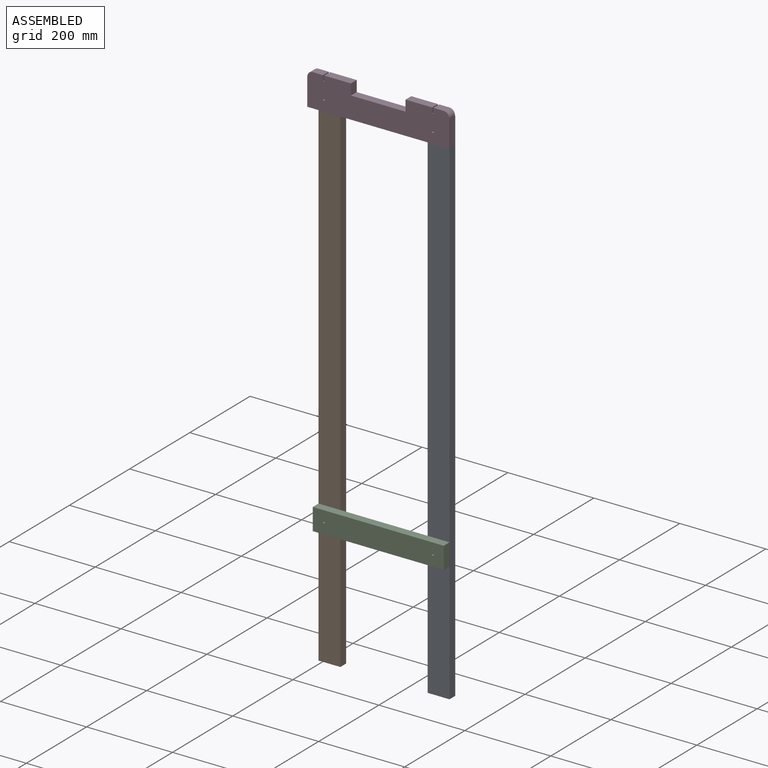
[diagram: assembled view]
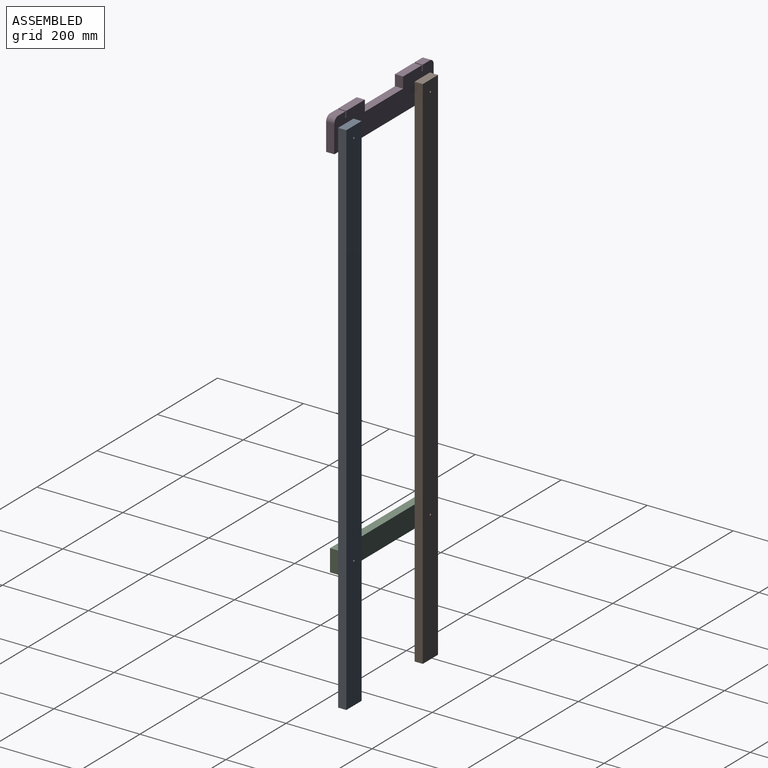
[diagram: assembled view, second angle]
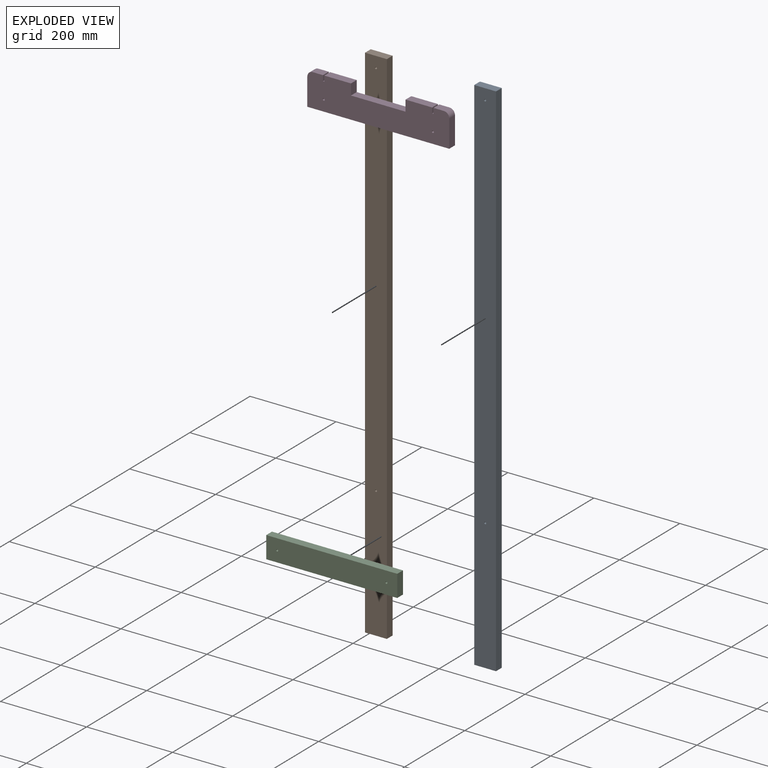
[diagram: exploded view]
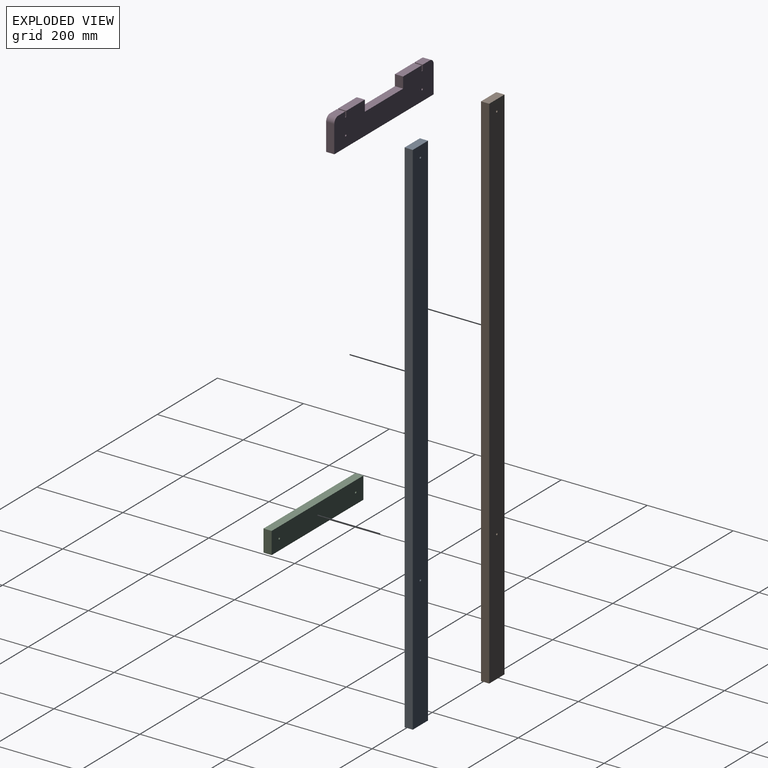
[diagram: exploded view, second angle]
ASSEMBLY  parts=4 mates=3
PART A: 8 faces, bbox 50.8x19.1x1219.2 mm
  f0: plane 1219.2x19.05mm, normal (-1,0,0), area 23225.8mm2, adj f1,f3,f4,f5
  f1: plane 50.8x19.05mm, normal (0,0,-1), area 967.7mm2, adj f0,f2,f4,f5
  f2: plane 1219.2x19.05mm, normal (1,0,0), area 23225.8mm2, adj f1,f3,f4,f5
  f3: plane 50.8x19.05mm, normal (0,0,1), area 967.7mm2, adj f0,f2,f4,f5
  f4: plane 1219.2x50.8mm, normal (0,-1,0), area 61899.7mm2, adj f0,f1,f2,f3,f6,f7
  f5: plane 1219.2x50.8mm, normal (0,1,0), area 61899.7mm2, adj f0,f1,f2,f3,f6,f7
  f6: cylinder r=2.38mm len=19.05mm, axis (0,-1,0), area 285mm2, adj f4,f5
  f7: cylinder r=2.38mm len=19.05mm, axis (0,-1,0), area 285mm2, adj f4,f5
PART B: same geometry as A
PART C: 8 faces, bbox 304.8x19.1x50.8 mm
  f0: plane 304.8x19.05mm, normal (0,0,1), area 5806.4mm2, adj f1,f3,f4,f5
  f1: plane 50.8x19.05mm, normal (-1,0,0), area 967.7mm2, adj f0,f2,f4,f5
  f2: plane 304.8x19.05mm, normal (0,0,-1), area 5806.4mm2, adj f1,f3,f4,f5
  f3: plane 50.8x19.05mm, normal (1,0,0), area 967.7mm2, adj f0,f2,f4,f5
  f4: plane 304.8x50.8mm, normal (0,-1,0), area 15448.2mm2, adj f0,f1,f2,f3,f6,f7
  f5: plane 304.8x50.8mm, normal (0,1,0), area 15448.2mm2, adj f0,f1,f2,f3,f6,f7
  f6: cylinder r=2.38mm len=19.05mm, axis (0,-1,0), area 285mm2, adj f4,f5
  f7: cylinder r=2.38mm len=19.05mm, axis (0,-1,0), area 285mm2, adj f4,f5
PART D: 22 faces, bbox 330.2x19.1x76.2 mm
  f0: plane 61.91x19.05mm, normal (0,0,1), area 1179.4mm2, adj f3,f4,f12,f17
  f1: plane 23.81x19.05mm, normal (0,0,1), area 453.6mm2, adj f3,f4,f7,f14
  f2: plane 61.91x19.05mm, normal (0,0,1), area 1179.4mm2, adj f3,f4,f13,f16
  f3: plane 330.2x76.2mm, normal (0,-1,0), area 21749.9mm2, adj f0,f1,f2,f5,f6,f7,f8,f9
  f4: plane 330.2x76.2mm, normal (0,1,0), area 21749.9mm2, adj f0,f1,f2,f5,f6,f7,f8,f9
  f5: plane 330.2x19.05mm, normal (0,0,-1), area 6290.3mm2, adj f3,f4,f6,f10
  f6: plane 63.5x19.05mm, normal (1,0,0), area 1209.7mm2, adj f3,f4,f5,f7
  f7: cylinder r=12.7mm len=19.05mm, axis (0,1,0), area 380mm2, adj f1,f3,f4,f6
  f8: plane 23.81x19.05mm, normal (0,0,1), area 453.6mm2, adj f3,f4,f9,f19
  f9: cylinder r=12.7mm len=19.05mm, axis (0,1,0), area 380mm2, adj f3,f4,f8,f10
  f10: plane 63.5x19.05mm, normal (-1,0,0), area 1209.7mm2, adj f3,f4,f5,f9
  f11: plane 127x19.05mm, normal (0,0,1), area 2419.3mm2, adj f3,f4,f12,f13
  f12: plane 25.4x19.05mm, normal (1,0,0), area 483.9mm2, adj f0,f3,f4,f11
  f13: plane 25.4x19.05mm, normal (-1,0,0), area 483.9mm2, adj f2,f3,f4,f11
  f14: plane 19.05x12.7mm, normal (-1,0,0), area 241.9mm2, adj f1,f3,f4,f15
  f15: plane 19.05x3.18mm, normal (0,0,1), area 60.5mm2, adj f3,f4,f14,f16
  f16: plane 19.05x12.7mm, normal (1,0,0), area 241.9mm2, adj f2,f3,f4,f15
  f17: plane 19.05x12.7mm, normal (-1,0,0), area 241.9mm2, adj f0,f3,f4,f18
  f18: plane 19.05x3.18mm, normal (0,0,1), area 60.5mm2, adj f3,f4,f17,f19
  f19: plane 19.05x12.7mm, normal (1,0,0), area 241.9mm2, adj f3,f4,f8,f18
  f20: cylinder r=2.38mm len=19.05mm, axis (0,-1,0), area 285mm2, adj f3,f4
  f21: cylinder r=2.38mm len=19.05mm, axis (0,-1,0), area 285mm2, adj f3,f4
PLACE A t=(93.78,83.7,-18.72)mm
PLACE B t=(-160.22,83.7,-18.72)mm
PLACE C t=(-30.07,64.65,-323.52)mm
PLACE D t=(-33.22,64.65,578.18)mm
MATE fastened C.f7 <-> A.f7  axis (0,1,0) through (93.78,64.65,-323.52)mm
MATE fastened A.f6 <-> D.f20  axis (0,-1,0) through (93.78,64.65,565.48)mm
MATE fastened B.f6 <-> D.f21  axis (0,-1,0) through (-160.22,64.65,565.48)mm
